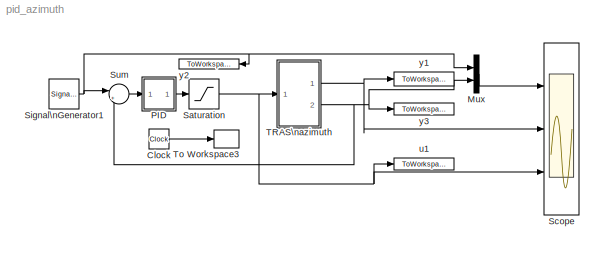
MODEL pid_azimuth
KIND model
CONFIG AbsTol = auto
CONFIG FixedStep = .01
CONFIG MaxStep = auto
CONFIG MinStep = auto
CONFIG RelTol = 1e-3
CONFIG Solver = ode5
CONFIG SolverMode = Auto
CONFIG StartTime = 0.0
CONFIG StopTime = 30
BLOCK [Clock] Clock
  Decimation = 1
BLOCK [Mux] Mux
  DisplayOption = bar
  Inputs = 2
  Ports = [2, 1]
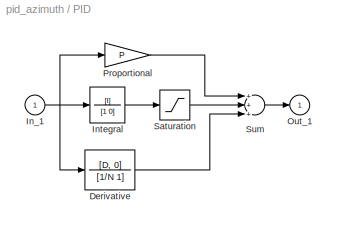
BLOCK [SubSystem] PID 
  AncestorBlock = simulink_extras/Additional\nLinear/PID Controller\n(with Approximate\nDerivative)
  MaskCallbackString = ||||
  MaskDescription = Enter Proportional(P), Integral(I), and Derivative(D) and divisor (N) terms.\nP+I/s+Ds/(1/Ns+1)
  MaskDisplay = disp('PID')
  MaskEnableString = on,on,on,on,on
  MaskHelp = This block implements a PID controller where parameters are entered for the Proportional, Integral and Derivative and divisor terms. Unmask this block to see how it works. The derivative term is implemented using an s/(s/N +1)  transfer function block. Making N large can create a \"stiff\" system.
  MaskIconFrame = on
  MaskIconOpaque = on
  MaskIconRotate = none
  MaskIconUnits = autoscale
  MaskPromptString = Proportional:|Integral:|Derivative:|Derivative divisor(N):|Integral saturation(0-1)
  MaskStyleString = edit,edit,edit,edit,edit
  MaskToolTipString = on,on,on,on,on
  MaskTunableValueString = on,on,on,on,on
  MaskType = PID(2) Controller
  MaskValueString = a|b|c|100|1
  MaskVarAliasString = ,,,,
  MaskVariables = P=@1;I=@2;D=@3;N=@4;S=@5;
  MaskVisibilityString = on,on,on,on,on
  Ports = [1, 1]
  TreatAsAtomicUnit = off
BLOCK [TransferFcn] PID /Derivative
  Denominator = [1/N 1]
  Numerator = [D, 0]
BLOCK [Inport] PID /In_1
BLOCK [TransferFcn] PID /Integral
  Denominator = [1 0]
  Numerator = [I]
BLOCK [Outport] PID /Out_1
  InitialOutput = 0
BLOCK [Gain] PID /Proportional
  Gain = P
BLOCK [Saturate] PID /Saturation
  LowerLimit = -S
  UpperLimit = S
BLOCK [Sum] PID /Sum
  Inputs = +++
  Ports = [3, 1]
BLOCK [Saturate] Saturation
BLOCK [Scope] Scope
  DataFormat = StructureWithTime
  NumInputPorts = 3
  Ports = [3]
  YMax = 5~5~5
  YMin = -5~-5~-5
BLOCK [SignalGenerator] Signal\nGenerator1
  Frequency = .05
  WaveForm = square
BLOCK [Sum] Sum
  IconShape = round
  InputSameDT = off
  Inputs = |+-
  OutDataTypeMode = Inherit via internal rule
  Ports = [2, 1]
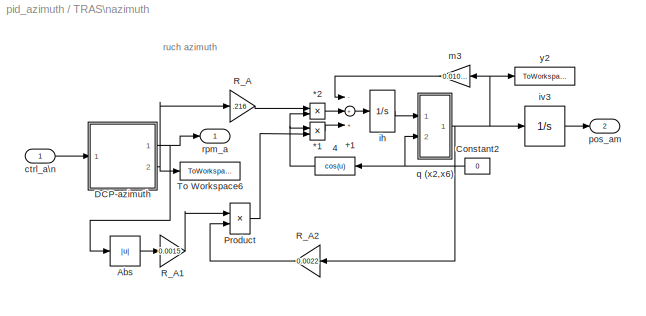
BLOCK [SubSystem] TRAS\nazimuth
  Ports = [1, 2]
  TreatAsAtomicUnit = off
BLOCK [Product] TRAS\nazimuth/*1
  Ports = [2, 1]
BLOCK [Product] TRAS\nazimuth/*2
  Ports = [2, 1]
BLOCK [Sum] TRAS\nazimuth/+1
  Inputs = -++
  Ports = [3, 1]
BLOCK [Fcn] TRAS\nazimuth/4
  Expr = cos(u)
BLOCK [Abs] TRAS\nazimuth/Abs
BLOCK [Constant] TRAS\nazimuth/Constant2
  Value = 0
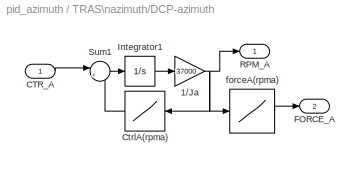
BLOCK [SubSystem] TRAS\nazimuth/DCP-azimuth
  Ports = [1, 2]
  TreatAsAtomicUnit = off
BLOCK [Gain] TRAS\nazimuth/DCP-azimuth/1//Ja
  Gain = 37000
  ShowAdditionalParam = on
BLOCK [Inport] TRAS\nazimuth/DCP-azimuth/CTR_A
BLOCK [Lookup] TRAS\nazimuth/DCP-azimuth/CtrlA(rpma)
  InputValues = rpm_a
  OutputValues = control_a
BLOCK [Outport] TRAS\nazimuth/DCP-azimuth/FORCE_A
  Port = 2
BLOCK [Integrator] TRAS\nazimuth/DCP-azimuth/Integrator1
  Ports = [1, 1]
BLOCK [Outport] TRAS\nazimuth/DCP-azimuth/RPM_A
BLOCK [Sum] TRAS\nazimuth/DCP-azimuth/Sum1
  IconShape = round
  Inputs = |+-
  Ports = [2, 1]
BLOCK [Lookup] TRAS\nazimuth/DCP-azimuth/forceA(rpma)
  InputValues = rpm_a
  OutputValues = force_a
BLOCK [Product] TRAS\nazimuth/Product
  Ports = [2, 1]
BLOCK [Gain] TRAS\nazimuth/R_A
  Gain = .216
  SaturateOnIntegerOverflow = off
BLOCK [Gain] TRAS\nazimuth/R_A1
  Gain = 0.0015
  SaturateOnIntegerOverflow = off
BLOCK [Gain] TRAS\nazimuth/R_A2
  Gain = 0.0022
  SaturateOnIntegerOverflow = off
BLOCK [ToWorkspace] TRAS\nazimuth/To Workspace6
  MaxDataPoints = inf
  SampleTime = -1
  SaveFormat = Array
  VariableName = force_am
BLOCK [Inport] TRAS\nazimuth/ctrl_a\n
BLOCK [Integrator] TRAS\nazimuth/ih
  Ports = [1, 1]
BLOCK [Integrator] TRAS\nazimuth/iv3
  Ports = [1, 1]
BLOCK [Gain] TRAS\nazimuth/m3
  Gain = 0.0108*0.4935*1.1051
  SaturateOnIntegerOverflow = off
BLOCK [Outport] TRAS\nazimuth/pos_am
  Port = 2
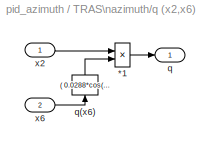
BLOCK [SubSystem] TRAS\nazimuth/q (x2,x6)
  Ports = [2, 1]
  TreatAsAtomicUnit = off
BLOCK [Fcn] TRAS\nazimuth/q (x2,x6)/ q(x6)
  Expr = ( 0.0288*cos(u)^2*0.8696)*1.0713  +0
BLOCK [Product] TRAS\nazimuth/q (x2,x6)/*1
  Inputs = */
  Ports = [2, 1]
BLOCK [Outport] TRAS\nazimuth/q (x2,x6)/q
BLOCK [Inport] TRAS\nazimuth/q (x2,x6)/x2
BLOCK [Inport] TRAS\nazimuth/q (x2,x6)/x6
  Port = 2
BLOCK [Outport] TRAS\nazimuth/rpm_a
BLOCK [ToWorkspace] TRAS\nazimuth/y2
  MaxDataPoints = inf
  SampleTime = -1
  SaveFormat = Array
  VariableName = vel_am
BLOCK [ToWorkspace] To Workspace3
  MaxDataPoints = inf
  SampleTime = -1
  SaveFormat = Array
  VariableName = t
BLOCK [ToWorkspace] u1
  MaxDataPoints = inf
  SampleTime = -1
  SaveFormat = Array
  VariableName = control_am
BLOCK [ToWorkspace] y1
  MaxDataPoints = inf
  SampleTime = -1
  SaveFormat = Array
  VariableName = rpm_am
BLOCK [ToWorkspace] y2
  MaxDataPoints = inf
  SampleTime = -1
  SaveFormat = Array
  VariableName = pos_ad
BLOCK [ToWorkspace] y3
  MaxDataPoints = inf
  SampleTime = -1
  SaveFormat = Array
  VariableName = pos_am
ANNOTATION TRAS\nazimuth: ruch azimuth
LINE Clock:1 -> To Workspace3:1
LINE Mux:1 -> Scope:1
LINE PID /Derivative:1 -> PID /Sum:3
NET PID /In_1:1 -> PID /Derivative:1, PID /Integral:1, PID /Proportional:1
LINE PID /Integral:1 -> PID /Saturation:1
LINE PID /Proportional:1 -> PID /Sum:1
LINE PID /Saturation:1 -> PID /Sum:2
LINE PID /Sum:1 -> PID /Out_1:1
LINE PID :1 -> Saturation:1
NET Saturation:1 -> Scope:3, TRAS\nazimuth:1, u1:1
NET Signal\nGenerator1:1 -> Mux:1, Sum:1, y2:1
LINE Sum:1 -> PID :1
LINE TRAS\nazimuth/*1:1 -> TRAS\nazimuth/+1:3
LINE TRAS\nazimuth/*2:1 -> TRAS\nazimuth/+1:2
LINE TRAS\nazimuth/+1:1 -> TRAS\nazimuth/ih:1
NET TRAS\nazimuth/4:1 -> TRAS\nazimuth/*1:1, TRAS\nazimuth/*2:2
LINE TRAS\nazimuth/Abs:1 -> TRAS\nazimuth/R_A1:1
NET TRAS\nazimuth/Constant2:1 -> TRAS\nazimuth/4:1, TRAS\nazimuth/q (x2,x6):2
NET TRAS\nazimuth/DCP-azimuth/1//Ja:1 -> TRAS\nazimuth/DCP-azimuth/CtrlA(rpma):1, TRAS\nazimuth/DCP-azimuth/RPM_A:1, TRAS\nazimuth/DCP-azimuth/forceA(rpma):1
LINE TRAS\nazimuth/DCP-azimuth/CTR_A:1 -> TRAS\nazimuth/DCP-azimuth/Sum1:1
LINE TRAS\nazimuth/DCP-azimuth/CtrlA(rpma):1 -> TRAS\nazimuth/DCP-azimuth/Sum1:2
LINE TRAS\nazimuth/DCP-azimuth/Integrator1:1 -> TRAS\nazimuth/DCP-azimuth/1//Ja:1
LINE TRAS\nazimuth/DCP-azimuth/Sum1:1 -> TRAS\nazimuth/DCP-azimuth/Integrator1:1
LINE TRAS\nazimuth/DCP-azimuth/forceA(rpma):1 -> TRAS\nazimuth/DCP-azimuth/FORCE_A:1
NET TRAS\nazimuth/DCP-azimuth:1 -> TRAS\nazimuth/Abs:1, TRAS\nazimuth/rpm_a:1
NET TRAS\nazimuth/DCP-azimuth:2 -> TRAS\nazimuth/R_A:1, TRAS\nazimuth/To Workspace6:1
LINE TRAS\nazimuth/Product:1 -> TRAS\nazimuth/*1:2
LINE TRAS\nazimuth/R_A1:1 -> TRAS\nazimuth/Product:1
LINE TRAS\nazimuth/R_A2:1 -> TRAS\nazimuth/Product:2
LINE TRAS\nazimuth/R_A:1 -> TRAS\nazimuth/*2:1
LINE TRAS\nazimuth/ctrl_a\n:1 -> TRAS\nazimuth/DCP-azimuth:1
LINE TRAS\nazimuth/ih:1 -> TRAS\nazimuth/q (x2,x6):1
LINE TRAS\nazimuth/iv3:1 -> TRAS\nazimuth/pos_am:1
LINE TRAS\nazimuth/m3:1 -> TRAS\nazimuth/+1:1
LINE TRAS\nazimuth/q (x2,x6)/ q(x6):1 -> TRAS\nazimuth/q (x2,x6)/*1:2
LINE TRAS\nazimuth/q (x2,x6)/*1:1 -> TRAS\nazimuth/q (x2,x6)/q:1
LINE TRAS\nazimuth/q (x2,x6)/x2:1 -> TRAS\nazimuth/q (x2,x6)/*1:1
LINE TRAS\nazimuth/q (x2,x6)/x6:1 -> TRAS\nazimuth/q (x2,x6)/ q(x6):1
NET TRAS\nazimuth/q (x2,x6):1 -> TRAS\nazimuth/R_A2:1, TRAS\nazimuth/iv3:1, TRAS\nazimuth/m3:1, TRAS\nazimuth/y2:1
NET TRAS\nazimuth:1 -> Scope:2, y1:1
NET TRAS\nazimuth:2 -> Mux:2, Sum:2, y3:1
note: NET lines group one-source signal fan-out (src -> all destinations, sorted); 1:1 wires keep LINE
